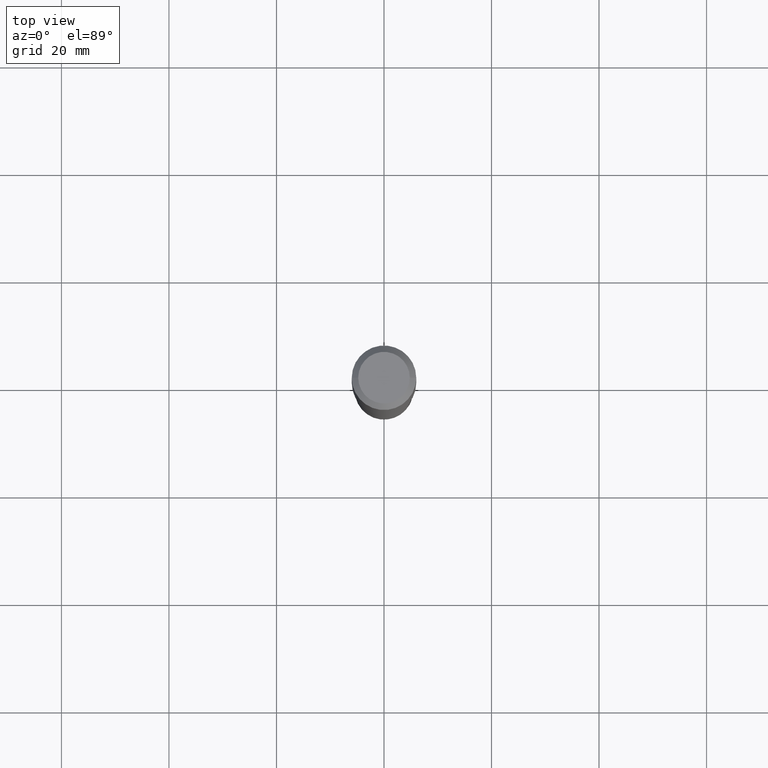
[diagram: clean part render]
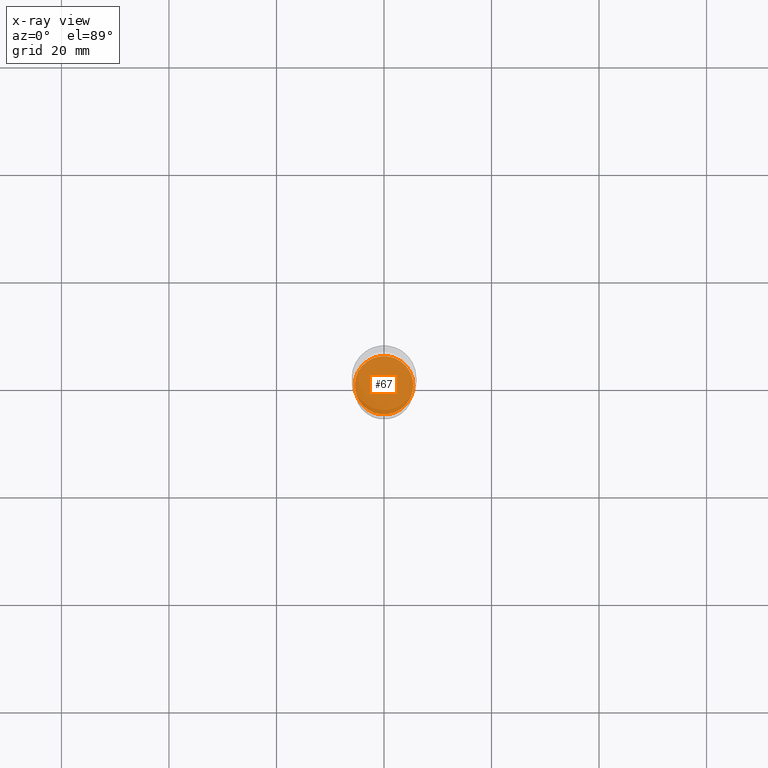
[diagram: x-ray — body ghosted, one internal face saturated and labeled with its STEP entity id]
A machine part, top view, then the same camera in x-ray: the body is ghosted and one INTERNAL B-rep face — a face not visible from any outside direction — is saturated and labeled: STEP entity #67.
In plain terms, the highlighted planar face has unit normal (-0, 0, 1).
Its self-contained STEP definition (entity closure, byte-faithful):
#3 = AXIS2_PLACEMENT_3D ( 'NONE', #148, #314, #106 ) ;
#50 = VERTEX_POINT ( 'NONE', #323 ) ;
#51 = CIRCLE ( 'NONE', #178, 0.2140499999999999903 ) ;
#56 = EDGE_CURVE ( 'NONE', #50, #441, #296, .T. ) ;
#67 = ADVANCED_FACE ( 'NONE', ( #163 ), #275, .F. ) ;
#68 = EDGE_LOOP ( 'NONE', ( #93, #318 ) ) ;
#81 = DIRECTION ( 'NONE',  ( 1.000000000000000000, -6.982962677686266711E-15, 0.000000000000000000 ) ) ;
#93 = ORIENTED_EDGE ( 'NONE', *, *, #56, .F. ) ;
#104 = CARTESIAN_POINT ( 'NONE',  ( 7.896418775171807488E-29, -1.127399324312451970E-14, -3.229000000000000981 ) ) ;
#106 = DIRECTION ( 'NONE',  ( 1.000000000000000000, -6.982962677686265922E-15, 4.876176775795935793E-29 ) ) ;
#123 = DIRECTION ( 'NONE',  ( -2.445468806185136597E-29, 3.491481338843145583E-15, 1.000000000000000000 ) ) ;
#129 = AXIS2_PLACEMENT_3D ( 'NONE', #104, #321, #469 ) ;
#148 = CARTESIAN_POINT ( 'NONE',  ( 7.896418775171807488E-29, -1.127399324312451970E-14, -3.229000000000000981 ) ) ;
#163 = FACE_OUTER_BOUND ( 'NONE', #68, .T. ) ;
#178 = AXIS2_PLACEMENT_3D ( 'NONE', #482, #123, #81 ) ;
#247 = EDGE_CURVE ( 'NONE', #441, #50, #51, .T. ) ;
#275 = PLANE ( 'NONE',  #3 ) ;
#296 = CIRCLE ( 'NONE', #129, 0.2140499999999999903 ) ;
#314 = DIRECTION ( 'NONE',  ( -2.438088387897960049E-29, 3.491481338843145188E-15, 1.000000000000000000 ) ) ;
#317 = CARTESIAN_POINT ( 'NONE',  ( -0.2140499999999999903, -9.750427290055914315E-15, -3.229000000000000981 ) ) ;
#318 = ORIENTED_EDGE ( 'NONE', *, *, #247, .F. ) ;
#321 = DIRECTION ( 'NONE',  ( -2.445468806185136597E-29, 3.491481338843145583E-15, 1.000000000000000000 ) ) ;
#323 = CARTESIAN_POINT ( 'NONE',  ( 0.2140499999999999903, -1.276869640428326548E-14, -3.229000000000000981 ) ) ;
#441 = VERTEX_POINT ( 'NONE', #317 ) ;
#469 = DIRECTION ( 'NONE',  ( 1.000000000000000000, -6.982962677686266711E-15, 0.000000000000000000 ) ) ;
#482 = CARTESIAN_POINT ( 'NONE',  ( 7.896418775171807488E-29, -1.127399324312451970E-14, -3.229000000000000981 ) ) ;